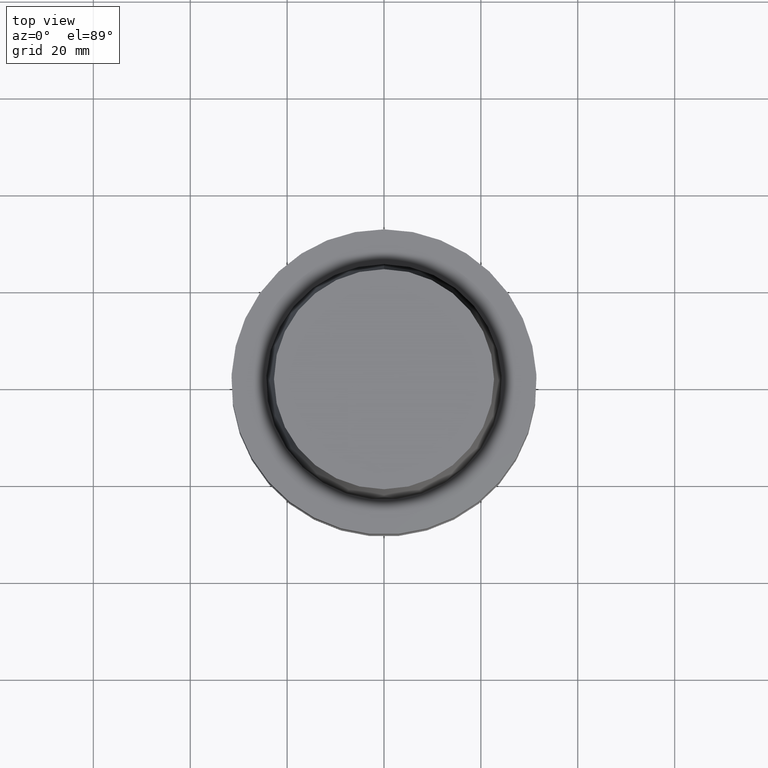
[diagram: clean part render]
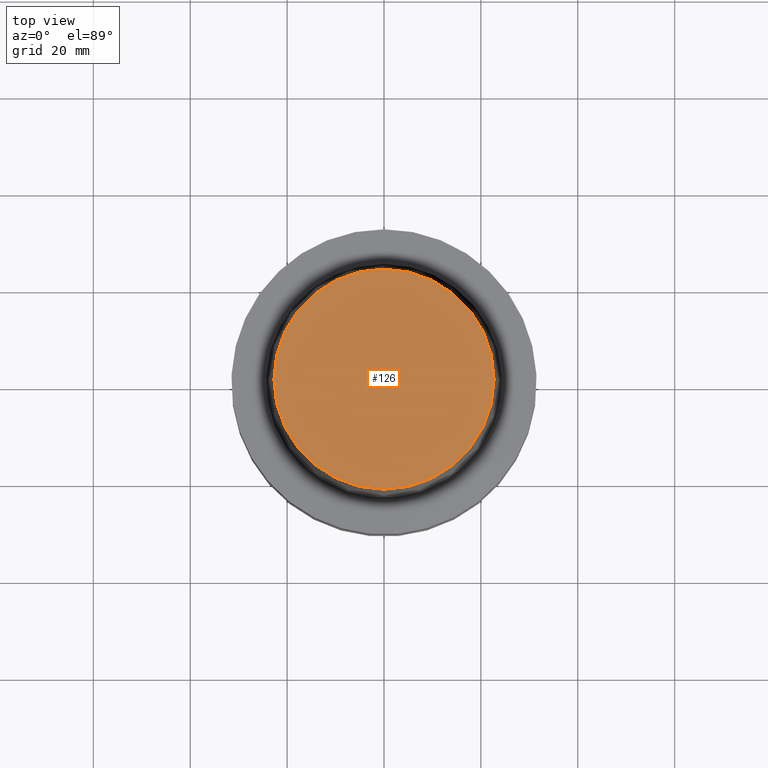
[diagram: same view with one face highlighted and labeled with its STEP entity id]
A machine part, top view. The second image highlights one B-rep face of the part: STEP entity #126.
In plain terms, the highlighted planar face has unit normal (-0, 0, 1).
Its self-contained STEP definition (entity closure, byte-faithful):
#126=ADVANCED_FACE('Unnamed[1]',(#288),#289,.T.);
#130=EDGE_CURVE('Unnamed[1]',#294,#294,#295,.T.);
#288=FACE_OUTER_BOUND('',#496,.T.);
#289=PLANE('',#497);
#294=VERTEX_POINT('',#504);
#295=CIRCLE('',#505,22.715);
#496=EDGE_LOOP('',(#712));
#497=AXIS2_PLACEMENT_3D('',#713,#714,#715);
#504=CARTESIAN_POINT('',(-1.95943487863576E-015,22.715,32.0));
#505=AXIS2_PLACEMENT_3D('',#719,#720,#721);
#712=ORIENTED_EDGE('',*,*,#130,.T.);
#713=CARTESIAN_POINT('',(-1.95943487863576E-015,11.3575,32.0));
#714=DIRECTION('',(-6.12323399573677E-017,9.72362339746437E-016,1.0));
#715=DIRECTION('',(5.47128686183263E-032,1.0,-9.72362339746437E-016));
#719=CARTESIAN_POINT('',(-1.95943487863576E-015,-3.91886975727153E-015,32.0));
#720=DIRECTION('',(-6.12323399573676E-017,-1.22464679914735E-016,1.0));
#721=DIRECTION('',(-1.23259516440783E-032,1.0,1.22464679914735E-016));